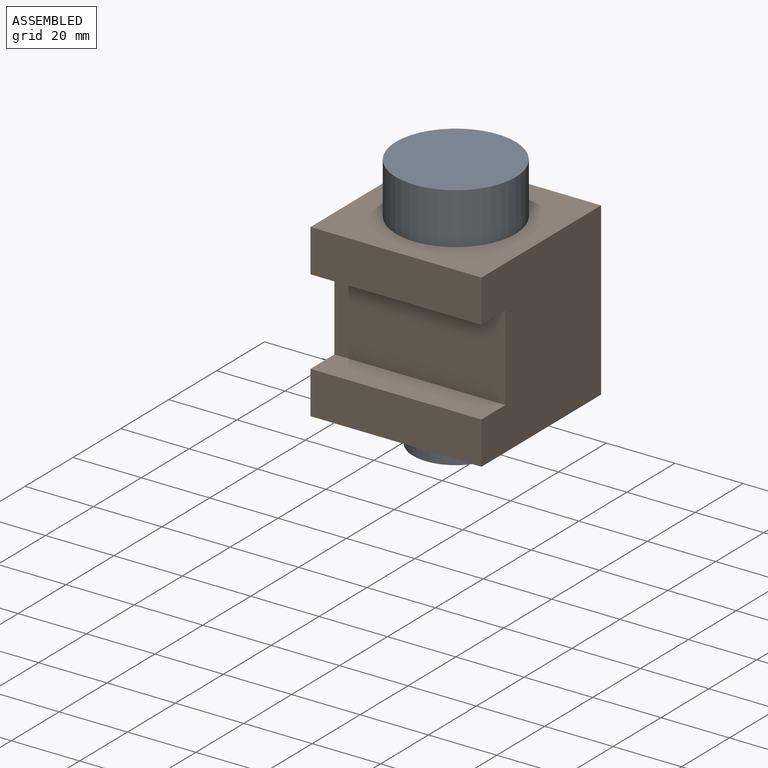
[diagram: assembled view]
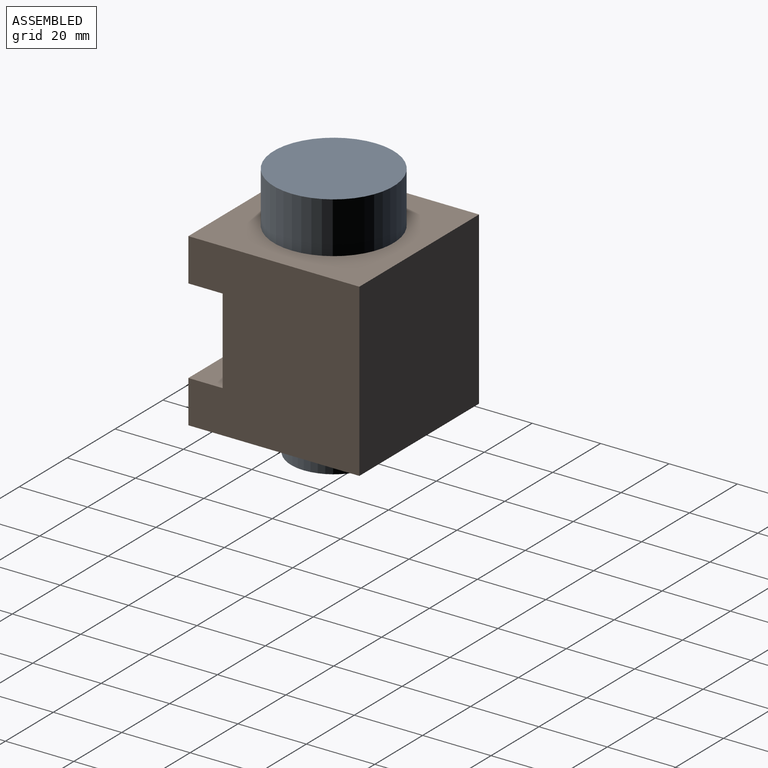
[diagram: assembled view, second angle]
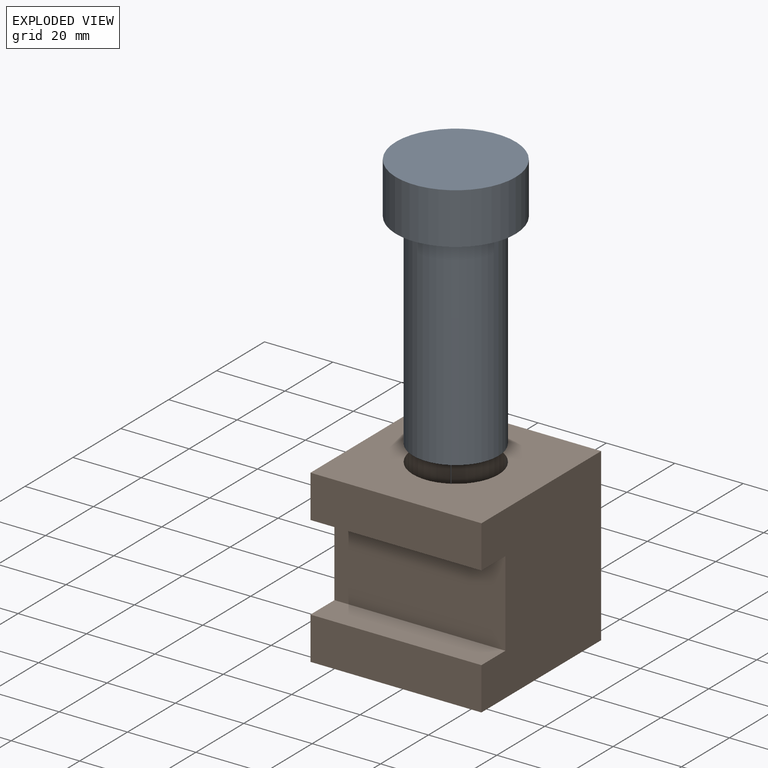
[diagram: exploded view]
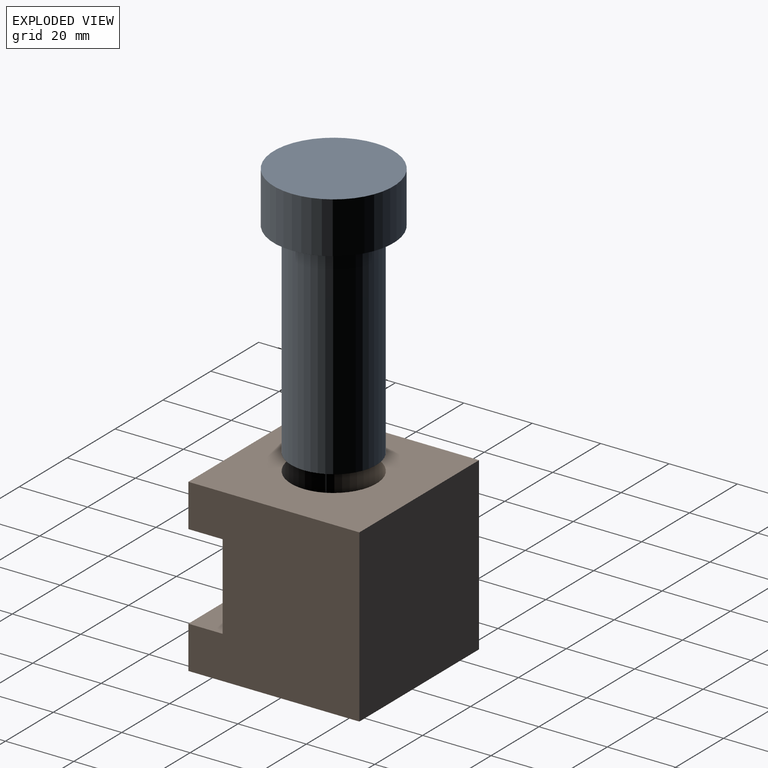
[diagram: exploded view, second angle]
ASSEMBLY  parts=2 mates=2
PART A: 5 faces, bbox 35x35x75 mm
  f0: plane 35x35mm, normal (0,0,1), area 962.1mm2, adj f1
  f1: cylinder r=17.5mm len=35mm, axis (0,0,1), area 1649.3mm2, adj f0,f2
  f2: plane 35x35mm, normal (0,0,-1), area 471.2mm2, adj f1,f3
  f3: cylinder r=12.5mm len=60mm, axis (0,0,1), area 4712.4mm2, adj f2,f4
  f4: plane 25x25mm, normal (0,0,-1), area 490.9mm2, adj f3
PART B: 11 faces, bbox 50x50x50 mm
  f0: plane 50x12.5mm, normal (0,-1,0), area 625mm2, adj f1,f3,f5,f8
  f1: plane 50x50mm, normal (-1,0,0), area 2250mm2, adj f0,f2,f4,f5,f6,f8,f9,f10
  f2: plane 50x12.5mm, normal (0,-1,0), area 625mm2, adj f1,f3,f6,f9
  f3: plane 50x50mm, normal (1,0,0), area 2250mm2, adj f0,f2,f4,f5,f6,f8,f9,f10
  f4: plane 50x50mm, normal (0,1,0), area 2500mm2, adj f1,f3,f5,f6
  f5: plane 50x50mm, normal (0,0,1), area 2009.1mm2, adj f0,f1,f3,f4,f7
  f6: plane 50x50mm, normal (0,0,-1), area 2009.1mm2, adj f1,f2,f3,f4,f7
  f7: cylinder r=12.5mm len=50mm, axis (0,0,1), area 3927mm2, adj f5,f6
  f8: plane 50x10mm, normal (0,0,-1), area 500mm2, adj f0,f1,f3,f10
  f9: plane 50x10mm, normal (0,0,1), area 500mm2, adj f1,f2,f3,f10
  f10: plane 50x25mm, normal (0,-1,0), area 1250mm2, adj f1,f3,f8,f9
PLACE A t=(0,0,2.5)mm
PLACE B at identity fixed
MATE fastened A.f1 <-> B.f7  axis (0,0,-1) through (0,0,25)mm
MATE slider A.f1 <-> B.f7  axis (0,0,1) through (0,0,-5)mm
